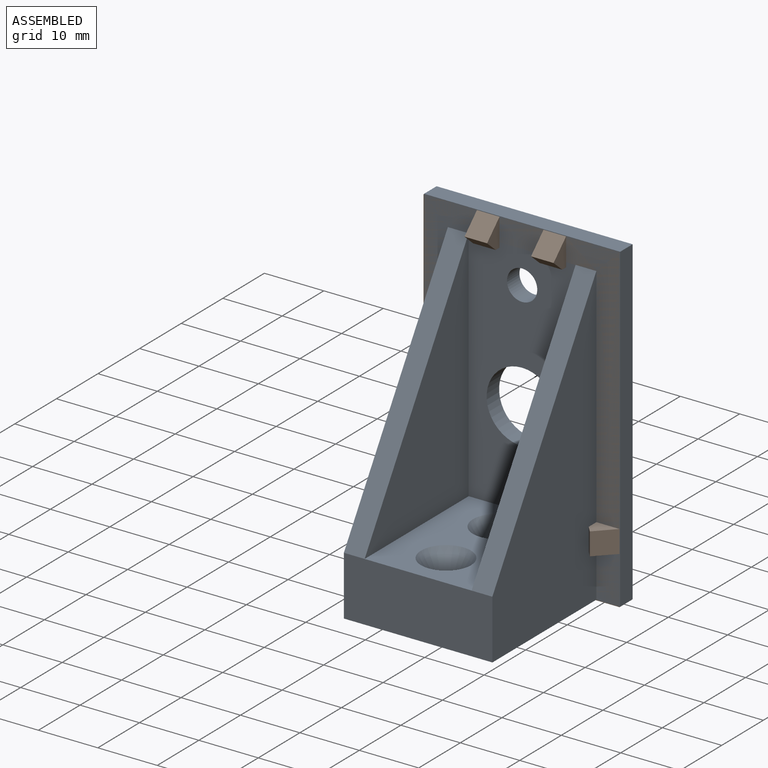
[diagram: assembled view]
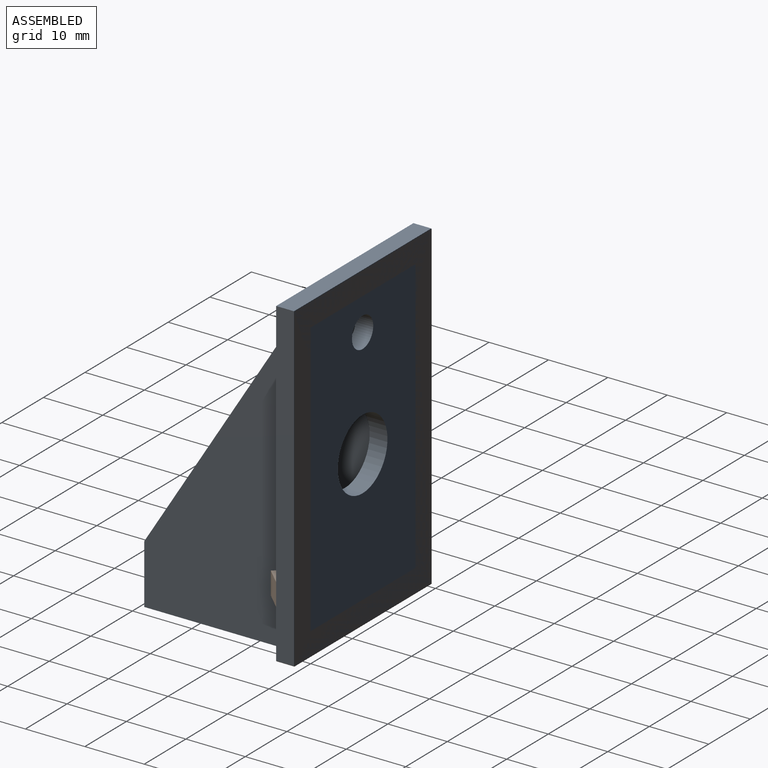
[diagram: assembled view, second angle]
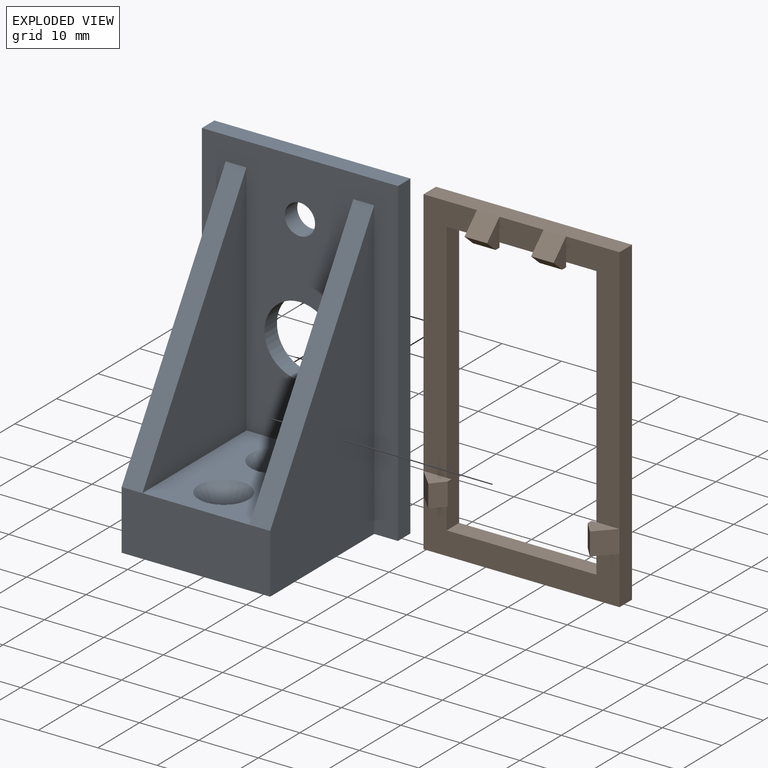
[diagram: exploded view]
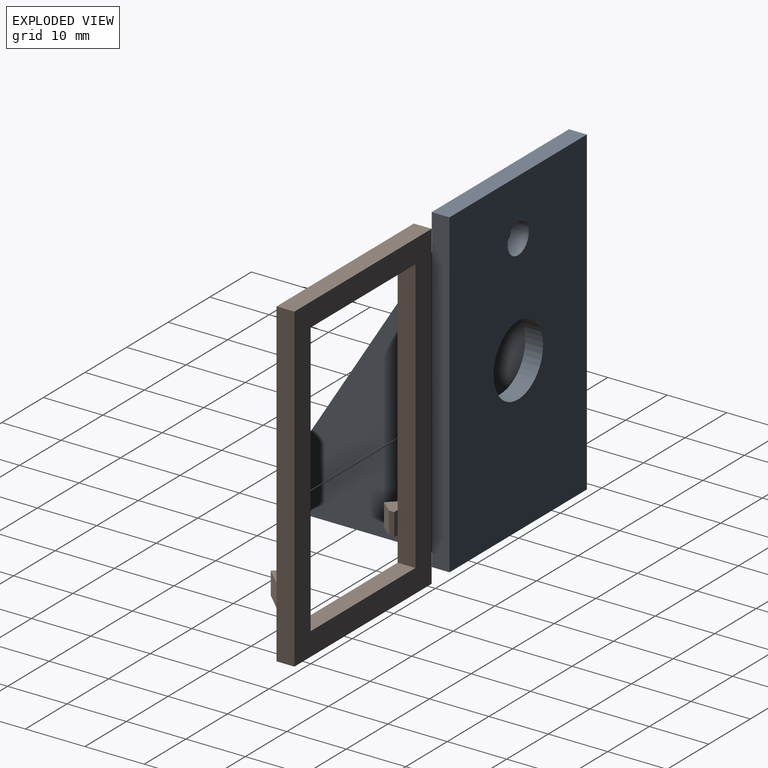
[diagram: exploded view, second angle]
ASSEMBLY  parts=2 mates=2
PART A: 20 faces, bbox 33x28x54 mm
  f0: plane 54x33mm, normal (0,-1,0), area 1119.4mm2, adj f1,f2,f3,f4,f5,f6,f8,f9
  f1: plane 33x28mm, normal (0,0,-1), area 693.6mm2, adj f0,f2,f5,f7,f10,f12,f15,f16
  f2: plane 54x3mm, normal (1,0,0), area 162mm2, adj f0,f1,f3,f7
  f3: plane 33x3mm, normal (0,0,1), area 99mm2, adj f0,f2,f5,f7
  f4: cylinder r=5.98mm len=11.95mm, axis (0,1,0), area 112.6mm2, adj f0,f7
  f5: plane 54x3mm, normal (-1,0,0), area 162mm2, adj f0,f1,f3,f7
  f6: cylinder r=2.55mm len=5.1mm, axis (0,1,0), area 48.1mm2, adj f0,f7
  f7: plane 54x33mm, normal (0,1,0), area 1649.4mm2, adj f1,f2,f3,f4,f5,f6
  f8: plane 40x25mm, normal (0,-0.85,0.53), area 165.1mm2, adj f0,f9,f10,f15
  f9: plane 40x25mm, normal (1,0,0), area 500mm2, adj f0,f8,f14
  f10: plane 50x25mm, normal (-1,0,0), area 750mm2, adj f0,f1,f8,f15
  f11: plane 40x25mm, normal (0,-0.85,0.53), area 165.1mm2, adj f0,f12,f13,f15
  f12: plane 50x25mm, normal (1,0,0), area 750mm2, adj f0,f1,f11,f15
  f13: plane 40x25mm, normal (-1,0,0), area 500mm2, adj f0,f11,f14
  f14: plane 25x18mm, normal (0,0,1), area 339.2mm2, adj f0,f9,f13,f15,f18,f19
  f15: plane 25x10mm, normal (0,-1,0), area 250mm2, adj f1,f8,f10,f11,f12,f14
  f16: cylinder r=2.2mm len=7mm, axis (0,0,1), area 96.8mm2, adj f1,f18
  f17: cylinder r=2.2mm len=7mm, axis (0,0,1), area 96.8mm2, adj f1,f19
  f18: cone r=2.2mm half-angle=33.7deg, axis (0,0,1), area 72.5mm2, adj f14,f16
  f19: cone r=2.2mm half-angle=33.7deg, axis (0,0,1), area 72.5mm2, adj f14,f17
PART B: 37 faces, bbox 33x54x6 mm
  f0: plane 4.7x3mm, normal (-1,0,0), area 7.9mm2, adj f7,f19,f33,f34,f36
  f1: plane 4.7x3mm, normal (1,0,0), area 7.9mm2, adj f8,f21,f31,f32,f35
  f2: plane 4.7x3mm, normal (0,-1,0), area 7.9mm2, adj f6,f23,f26,f27,f28
  f3: plane 3.8x0.8mm, normal (0,0,-1), area 3mm2, adj f4,f5,f9,f29
  f4: plane 4.7x3mm, normal (0,-1,0), area 7.9mm2, adj f3,f6,f25,f29,f30
  f5: plane 4.7x3mm, normal (0,1,0), area 7.9mm2, adj f3,f8,f25,f29,f30
  f6: plane 33x8.1mm, normal (0,0,1), area 161.5mm2, adj f2,f4,f9,f10,f11,f12,f13,f14
  f7: plane 42.1x9mm, normal (0,0,1), area 184.1mm2, adj f0,f11,f12,f15,f16,f24
  f8: plane 42.1x9mm, normal (0,0,1), area 184.1mm2, adj f1,f5,f9,f14,f15,f16
  f9: plane 46.2x3mm, normal (-1,0,0), area 138.6mm2, adj f3,f6,f8,f10,f16,f18
  f10: plane 25.2x3mm, normal (0,1,0), area 75.6mm2, adj f6,f9,f11,f18
  f11: plane 46.2x3mm, normal (1,0,0), area 138.6mm2, adj f6,f7,f10,f16,f18,f23
  f12: plane 54x3mm, normal (-1,0,0), area 162mm2, adj f6,f7,f13,f15,f18,f28
  f13: plane 33x3mm, normal (0,-1,0), area 99mm2, adj f6,f12,f14,f18
  f14: plane 54x3mm, normal (1,0,0), area 162mm2, adj f6,f8,f13,f15,f18,f25
  f15: plane 33x3mm, normal (0,1,0), area 99mm2, adj f7,f8,f12,f14,f17,f18,f35,f36
  f16: plane 25.2x3mm, normal (0,-1,0), area 75.6mm2, adj f7,f8,f9,f11,f17,f18,f19,f21
  f17: plane 7.4x3.9mm, normal (0,0,1), area 28.9mm2, adj f15,f16,f20,f22
  f18: plane 54x33mm, normal (0,0,-1), area 617.8mm2, adj f9,f10,f11,f12,f13,f14,f15,f16
  f19: plane 3.8x0.8mm, normal (0,0,-1), area 3mm2, adj f0,f16,f20,f34
  f20: plane 4.7x3mm, normal (1,0,0), area 7.9mm2, adj f17,f19,f33,f34,f36
  f21: plane 3.8x0.8mm, normal (0,0,-1), area 3mm2, adj f1,f16,f22,f31
  f22: plane 4.7x3mm, normal (-1,0,0), area 7.9mm2, adj f17,f21,f31,f32,f35
  f23: plane 3.8x0.8mm, normal (0,0,-1), area 3mm2, adj f2,f11,f24,f27
  f24: plane 4.7x3mm, normal (0,1,0), area 7.9mm2, adj f7,f23,f26,f27,f28
  f25: plane 3.8x3mm, normal (0.72,0,0.7), area 15.9mm2, adj f4,f5,f14,f30
  f26: plane 3.8x2.08mm, normal (0.76,0,0.65), area 10.4mm2, adj f2,f24,f27,f28
  f27: plane 3.8x0.92mm, normal (1,0,0), area 3.5mm2, adj f2,f23,f24,f26
  f28: plane 3.8x3mm, normal (-0.72,0,0.7), area 15.9mm2, adj f2,f12,f24,f26
  f29: plane 3.8x0.92mm, normal (-1,0,0), area 3.5mm2, adj f3,f4,f5,f30
  f30: plane 3.8x2.08mm, normal (-0.76,0,0.65), area 10.4mm2, adj f4,f5,f25,f29
  f31: plane 3.8x0.92mm, normal (0,-1,0), area 3.5mm2, adj f1,f21,f22,f32
  f32: plane 3.8x2.08mm, normal (0,-0.76,0.65), area 10.4mm2, adj f1,f22,f31,f35
  f33: plane 3.8x2.08mm, normal (0,-0.76,0.65), area 10.4mm2, adj f0,f20,f34,f36
  f34: plane 3.8x0.92mm, normal (0,-1,0), area 3.5mm2, adj f0,f19,f20,f33
  f35: plane 3.8x3mm, normal (0,0.72,0.7), area 15.9mm2, adj f1,f15,f22,f32
  f36: plane 3.8x3mm, normal (0,0.72,0.7), area 15.9mm2, adj f0,f15,f20,f33
PLACE A t=(-29,0,0)mm
PLACE B rot(axis=(1,0,0),90deg) t=(-29.1,0,-0.1)mm
MATE planar B.f18 <-> A.f7  axis (0,1,0) through (-12.6,0,26.9)mm
MATE planar B.f9 <-> A.f12  axis (-1,0,0) through (0,-1.5,26.9)mm
